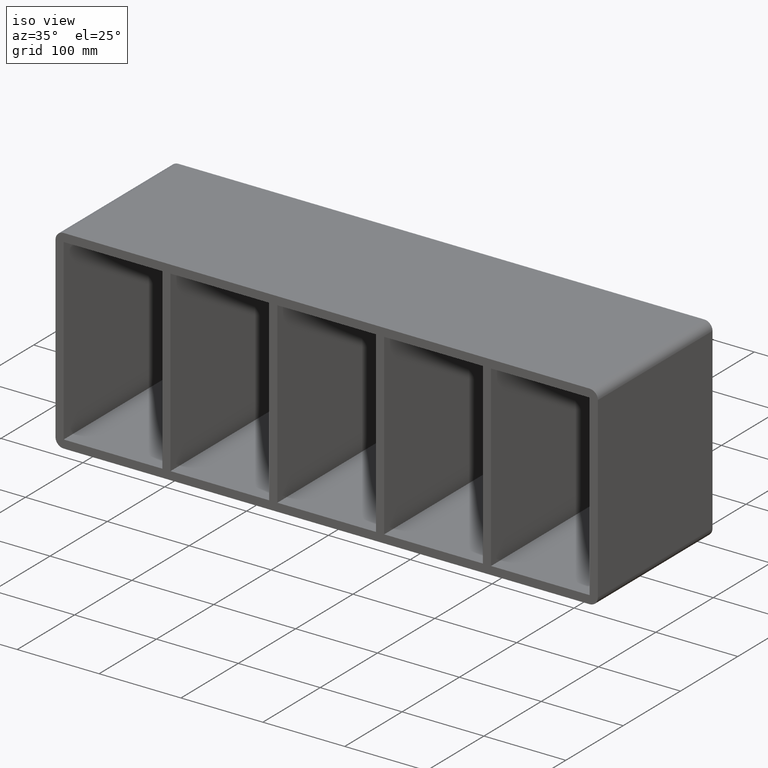
[diagram: clean part render]
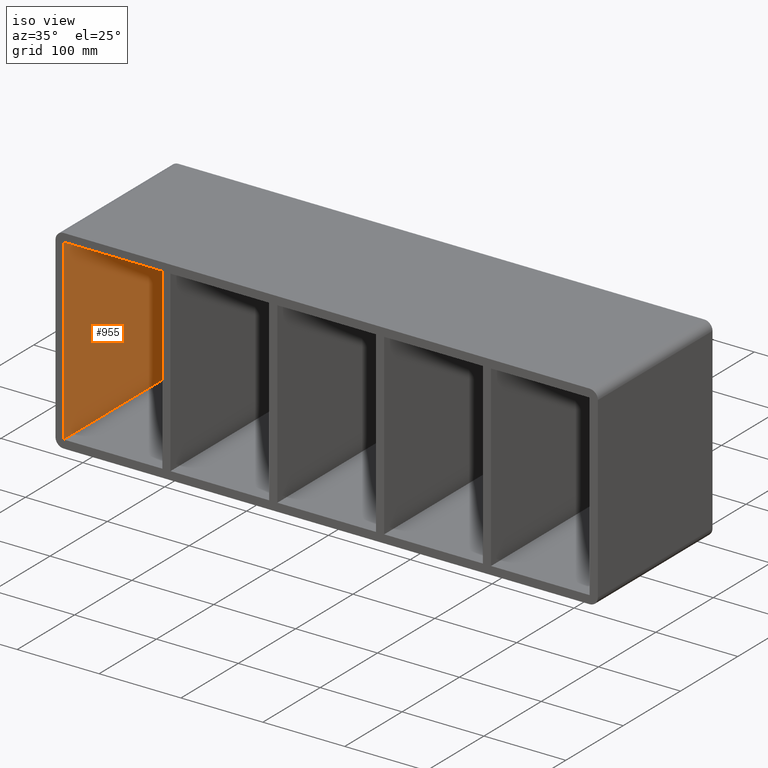
[diagram: same view with one face highlighted and labeled with its STEP entity id]
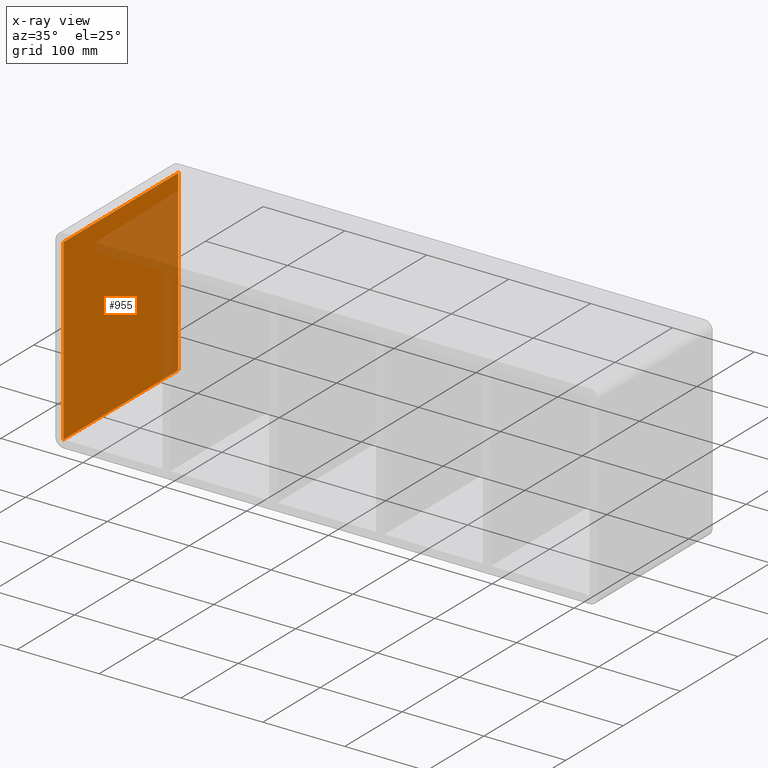
[diagram: x-ray of the same camera — body ghosted, the highlighted face saturated]
A machine part, iso view. The second image highlights one B-rep face of the part: STEP entity #955.
The next image is the same camera in x-ray: the body ghosted, the highlighted face saturated — about 24% of this face is hidden behind the body in this view.
In plain terms, the highlighted planar face has unit normal (-1, 0, 0).
Its self-contained STEP definition (entity closure, byte-faithful):
#588=CARTESIAN_POINT('',(-321.25,197.0,-109.0));
#589=VERTEX_POINT('',#588);
#596=CARTESIAN_POINT('',(-321.25,-3.0,-109.0));
#597=VERTEX_POINT('',#596);
#598=CARTESIAN_POINT('',(-321.25,-3.0,-109.0));
#599=DIRECTION('',(0.0,1.0,0.0));
#600=VECTOR('',#599,200.0);
#601=LINE('',#598,#600);
#602=EDGE_CURVE('',#597,#589,#601,.T.);
#619=CARTESIAN_POINT('',(-321.25,-3.0,109.00000000000004));
#620=VERTEX_POINT('',#619);
#627=CARTESIAN_POINT('',(-321.25,197.0,109.00000000000004));
#628=VERTEX_POINT('',#627);
#629=CARTESIAN_POINT('',(-321.25,-3.0,109.00000000000003));
#630=DIRECTION('',(0.0,1.0,0.0));
#631=VECTOR('',#630,200.0);
#632=LINE('',#629,#631);
#633=EDGE_CURVE('',#620,#628,#632,.T.);
#770=CARTESIAN_POINT('',(-321.25,-3.0,-109.0));
#771=DIRECTION('',(0.0,0.0,1.0));
#772=VECTOR('',#771,218.0);
#773=LINE('',#770,#772);
#774=EDGE_CURVE('',#597,#620,#773,.T.);
#939=CARTESIAN_POINT('',(-321.25,0.0,-109.0));
#940=DIRECTION('',(-1.0,0.0,0.0));
#941=DIRECTION('',(0.0,0.0,1.0));
#942=AXIS2_PLACEMENT_3D('',#939,#940,#941);
#943=PLANE('',#942);
#944=ORIENTED_EDGE('',*,*,#633,.F.);
#945=ORIENTED_EDGE('',*,*,#774,.F.);
#946=ORIENTED_EDGE('',*,*,#602,.T.);
#947=CARTESIAN_POINT('',(-321.25,197.0,109.0));
#948=DIRECTION('',(0.0,0.0,-1.0));
#949=VECTOR('',#948,218.0);
#950=LINE('',#947,#949);
#951=EDGE_CURVE('',#628,#589,#950,.T.);
#952=ORIENTED_EDGE('',*,*,#951,.F.);
#953=EDGE_LOOP('',(#944,#945,#946,#952));
#954=FACE_OUTER_BOUND('',#953,.T.);
#955=ADVANCED_FACE('',(#954),#943,.F.);